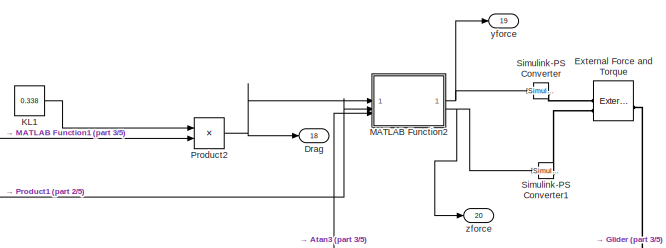
[diagram: root canvas - part 1/5, top right region]
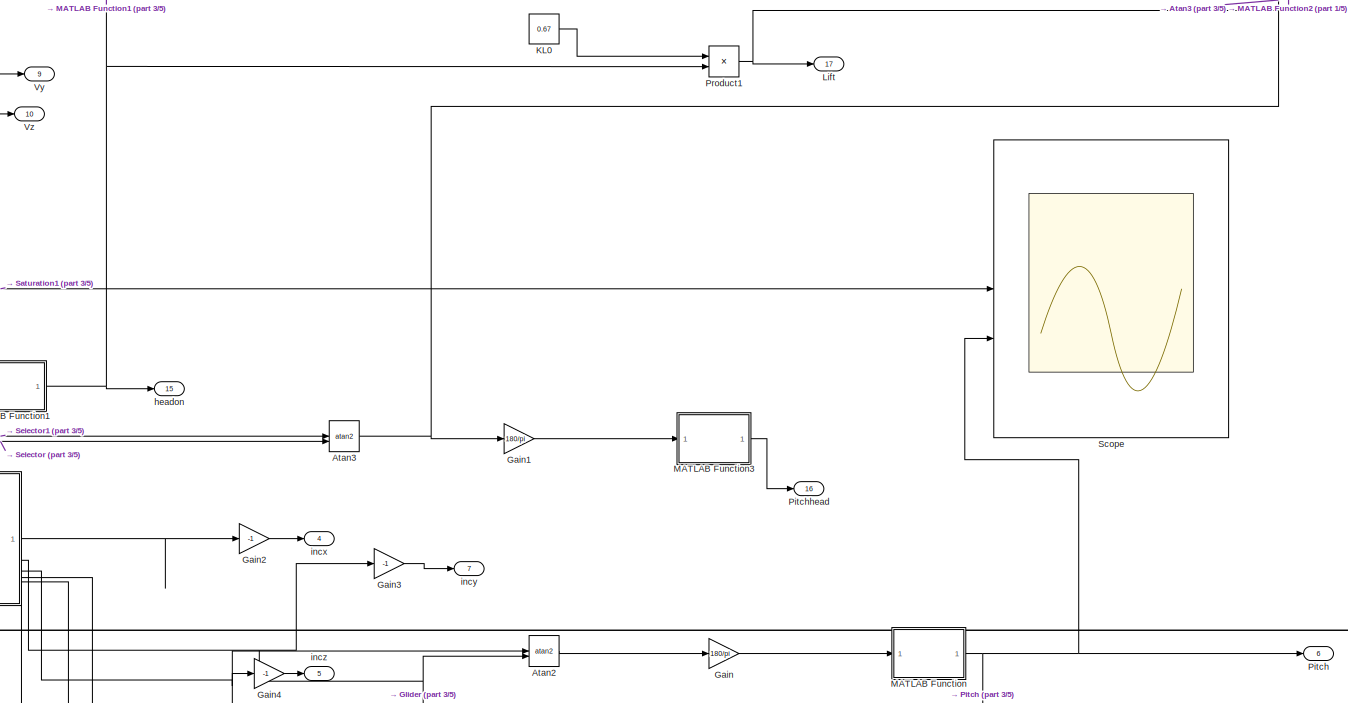
[diagram: root canvas - part 2/5, middle right region]
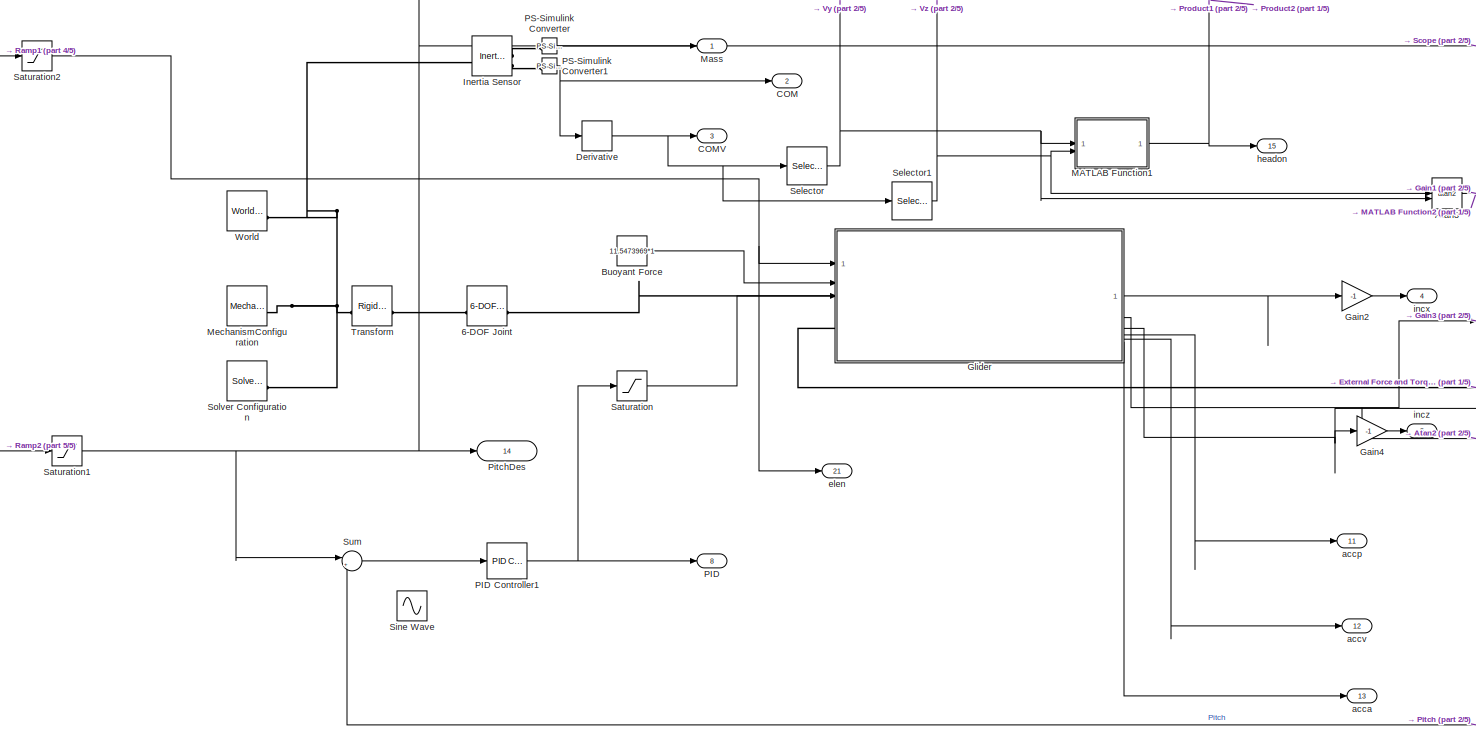
[diagram: root canvas - part 3/5, bottom left region]
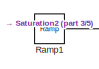
[diagram: root canvas - part 4/5, middle left region]
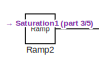
[diagram: root canvas - part 5/5, bottom left region]
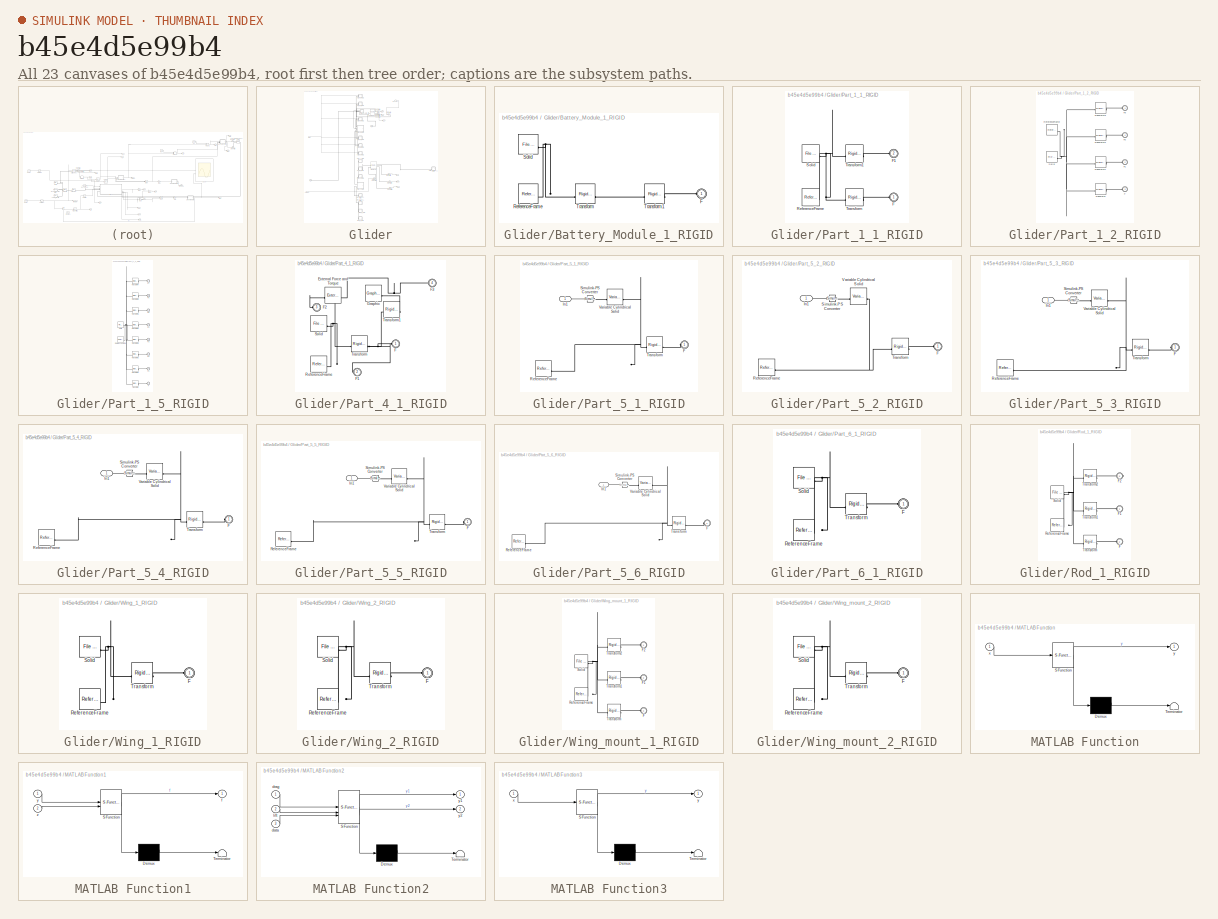
[diagram: thumbnail index - all 23 canvases of the model, root first then tree order]
MODEL slx_b45e4d5e99b4
KIND model
CONFIG AbsTol = auto
CONFIG EnableMultiTasking = off
CONFIG FixedStep = auto
CONFIG MaxStep = auto
CONFIG MinStep = auto
CONFIG RelTol = 1e-3
CONFIG SampleTimeConstraint = Unconstrained
CONFIG SolverName = VariableStepAuto
CONFIG StartTime = 0.0
CONFIG StopTime = 100
WORKSPACE source: external: MATLAB File  (data not in archive)
BLOCK [Reference] 6-DOF Joint  REF=sm_lib/Joints/6-DOF Joint
  SourceBlock = sm_lib/Joints/6-DOF Joint
  SourceType = 6-DOF Joint
BLOCK [Trigonometry] Atan2
  Operator = atan2
BLOCK [Trigonometry] Atan3
  Operator = atan2
BLOCK [Constant] Buoyant Force
  Value = 11.5473969*1
BLOCK [Outport] COM
  Port = 2
BLOCK [Outport] COMV
  Port = 3
BLOCK [Derivative] Derivative
  CoefficientInTFapproximation = 10
BLOCK [Outport] Drag
  Port = 18
BLOCK [Reference] External Force and Torque  REF=sm_lib/Forces and
Torques/External Force
and Torque
  SourceBlock = sm_lib/Forces and\nTorques/External Force\nand Torque
  SourceType = External Force\nand Torque
BLOCK [Gain] Gain
  Gain = 180/pi
BLOCK [Gain] Gain1
  Gain = 180/pi
BLOCK [Gain] Gain2
  Gain = -1
BLOCK [Gain] Gain3
  Gain = -1
BLOCK [Gain] Gain4
  Gain = -1
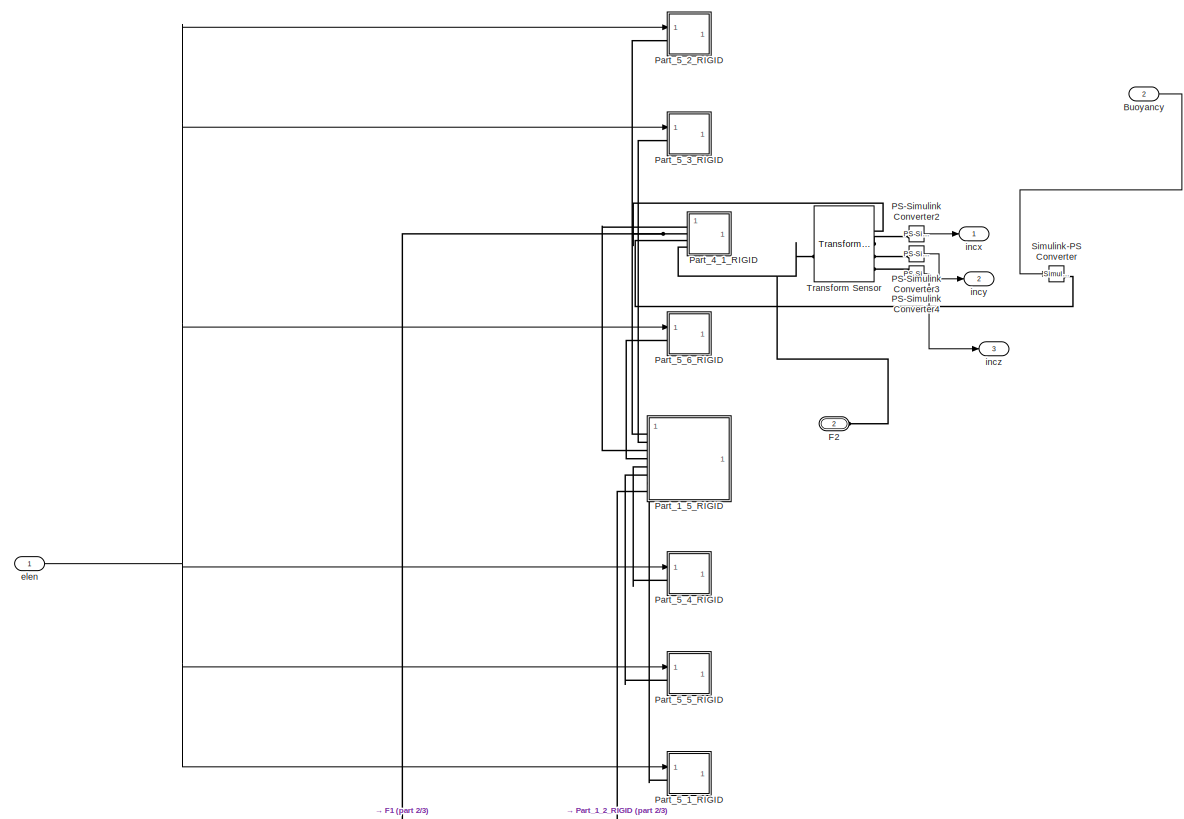
[diagram: Glider - part 1/3, top center region]
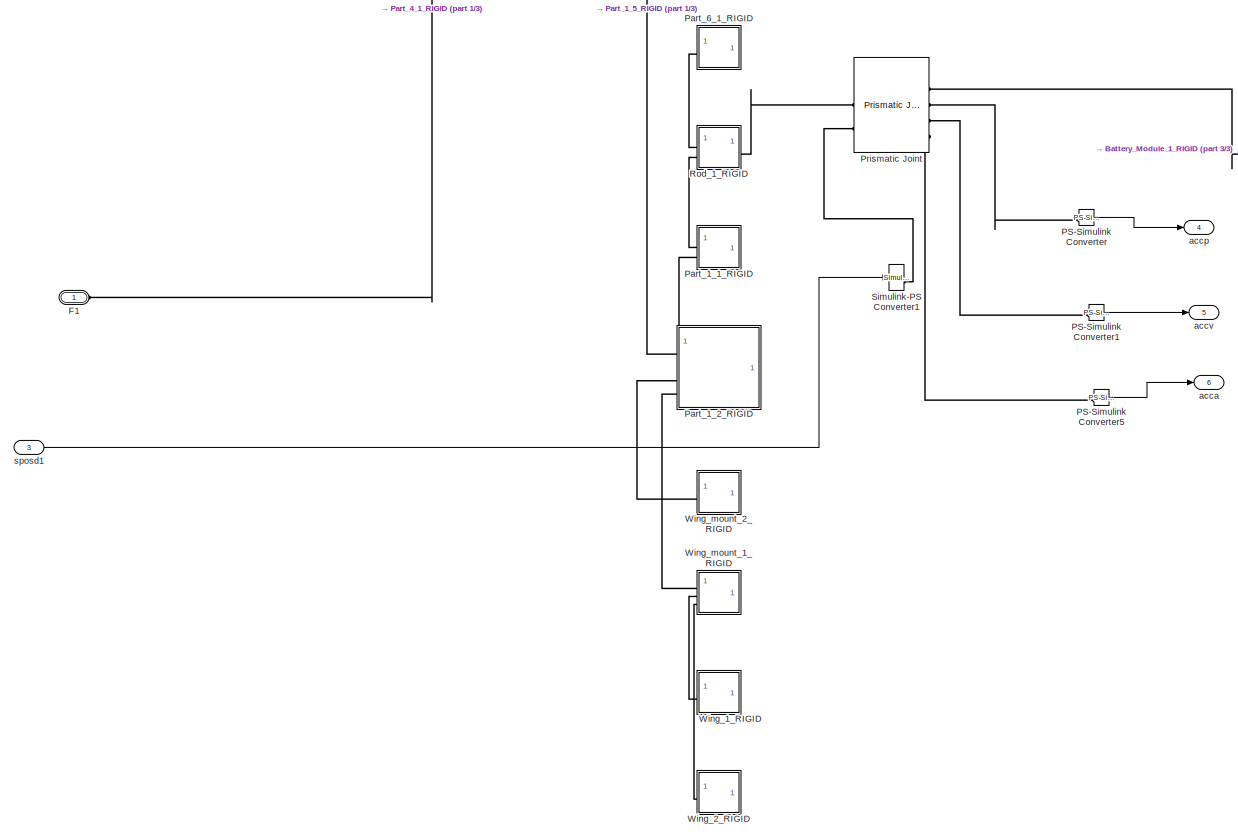
[diagram: Glider - part 2/3, bottom center region]
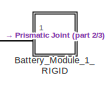
[diagram: Glider - part 3/3, middle right region]
BLOCK [SubSystem] Glider
BLOCK [SubSystem] Glider/Battery_Module_1_RIGID
BLOCK [PMIOPort] Glider/Battery_Module_1_RIGID/F
  Side = Left
BLOCK [Reference] Glider/Battery_Module_1_RIGID/ReferenceFrame  REF=sm_lib/Frames and
Transforms/Reference
Frame
  SourceBlock = sm_lib/Frames and\nTransforms/Reference\nFrame
  SourceType = Reference\nFrame
BLOCK [Reference] Glider/Battery_Module_1_RIGID/Solid  REF=sm_lib/Body Elements/File Solid
  SourceBlock = sm_lib/Body Elements/File Solid
  SourceType = File Solid
BLOCK [Reference] Glider/Battery_Module_1_RIGID/Transform  REF=sm_lib/Frames and
Transforms/Rigid
Transform
  SourceBlock = sm_lib/Frames and\nTransforms/Rigid\nTransform
  SourceType = Rigid\nTransform
BLOCK [Reference] Glider/Battery_Module_1_RIGID/Transform1  REF=sm_lib/Frames and
Transforms/Rigid
Transform
  SourceBlock = sm_lib/Frames and\nTransforms/Rigid\nTransform
  SourceType = Rigid\nTransform
BLOCK [Inport] Glider/Buoyancy
  Port = 2
BLOCK [PMIOPort] Glider/F1
  Side = Left
BLOCK [PMIOPort] Glider/F2
  Port = 2
  Side = Left
BLOCK [Reference] Glider/PS-Simulink Converter  REF=nesl_utility/PS-Simulink
Converter
  SourceBlock = nesl_utility/PS-Simulink\nConverter
  SourceType = PS-Simulink\nConverter
BLOCK [Reference] Glider/PS-Simulink Converter1  REF=nesl_utility/PS-Simulink
Converter
  SourceBlock = nesl_utility/PS-Simulink\nConverter
  SourceType = PS-Simulink\nConverter
BLOCK [Reference] Glider/PS-Simulink Converter2  REF=nesl_utility/PS-Simulink
Converter
  SourceBlock = nesl_utility/PS-Simulink\nConverter
  SourceType = PS-Simulink\nConverter
BLOCK [Reference] Glider/PS-Simulink Converter3  REF=nesl_utility/PS-Simulink
Converter
  SourceBlock = nesl_utility/PS-Simulink\nConverter
  SourceType = PS-Simulink\nConverter
BLOCK [Reference] Glider/PS-Simulink Converter4  REF=nesl_utility/PS-Simulink
Converter
  SourceBlock = nesl_utility/PS-Simulink\nConverter
  SourceType = PS-Simulink\nConverter
BLOCK [Reference] Glider/PS-Simulink Converter5  REF=nesl_utility/PS-Simulink
Converter
  SourceBlock = nesl_utility/PS-Simulink\nConverter
  SourceType = PS-Simulink\nConverter
BLOCK [SubSystem] Glider/Part_1_1_RIGID
BLOCK [PMIOPort] Glider/Part_1_1_RIGID/F
  Side = Left
BLOCK [PMIOPort] Glider/Part_1_1_RIGID/F1
  Port = 2
  Side = Left
BLOCK [Reference] Glider/Part_1_1_RIGID/ReferenceFrame  REF=sm_lib/Frames and
Transforms/Reference
Frame
  SourceBlock = sm_lib/Frames and\nTransforms/Reference\nFrame
  SourceType = Reference\nFrame
BLOCK [Reference] Glider/Part_1_1_RIGID/Solid  REF=sm_lib/Body Elements/File Solid
  SourceBlock = sm_lib/Body Elements/File Solid
  SourceType = File Solid
BLOCK [Reference] Glider/Part_1_1_RIGID/Transform  REF=sm_lib/Frames and
Transforms/Rigid
Transform
  SourceBlock = sm_lib/Frames and\nTransforms/Rigid\nTransform
  SourceType = Rigid\nTransform
BLOCK [Reference] Glider/Part_1_1_RIGID/Transform1  REF=sm_lib/Frames and
Transforms/Rigid
Transform
  SourceBlock = sm_lib/Frames and\nTransforms/Rigid\nTransform
  SourceType = Rigid\nTransform
BLOCK [SubSystem] Glider/Part_1_2_RIGID
BLOCK [PMIOPort] Glider/Part_1_2_RIGID/F
  Port = 3
  Side = Left
BLOCK [PMIOPort] Glider/Part_1_2_RIGID/F1
  Port = 2
  Side = Left
BLOCK [PMIOPort] Glider/Part_1_2_RIGID/F2
  Port = 4
  Side = Left
BLOCK [PMIOPort] Glider/Part_1_2_RIGID/F3
  Side = Left
BLOCK [Reference] Glider/Part_1_2_RIGID/ReferenceFrame  REF=sm_lib/Frames and
Transforms/Reference
Frame
  SourceBlock = sm_lib/Frames and\nTransforms/Reference\nFrame
  SourceType = Reference\nFrame
BLOCK [Reference] Glider/Part_1_2_RIGID/Solid  REF=sm_lib/Body Elements/File Solid
  SourceBlock = sm_lib/Body Elements/File Solid
  SourceType = File Solid
BLOCK [Reference] Glider/Part_1_2_RIGID/Transform  REF=sm_lib/Frames and
Transforms/Rigid
Transform
  SourceBlock = sm_lib/Frames and\nTransforms/Rigid\nTransform
  SourceType = Rigid\nTransform
BLOCK [Reference] Glider/Part_1_2_RIGID/Transform1  REF=sm_lib/Frames and
Transforms/Rigid
Transform
  SourceBlock = sm_lib/Frames and\nTransforms/Rigid\nTransform
  SourceType = Rigid\nTransform
BLOCK [Reference] Glider/Part_1_2_RIGID/Transform2  REF=sm_lib/Frames and
Transforms/Rigid
Transform
  SourceBlock = sm_lib/Frames and\nTransforms/Rigid\nTransform
  SourceType = Rigid\nTransform
BLOCK [Reference] Glider/Part_1_2_RIGID/Transform3  REF=sm_lib/Frames and
Transforms/Rigid
Transform
  SourceBlock = sm_lib/Frames and\nTransforms/Rigid\nTransform
  SourceType = Rigid\nTransform
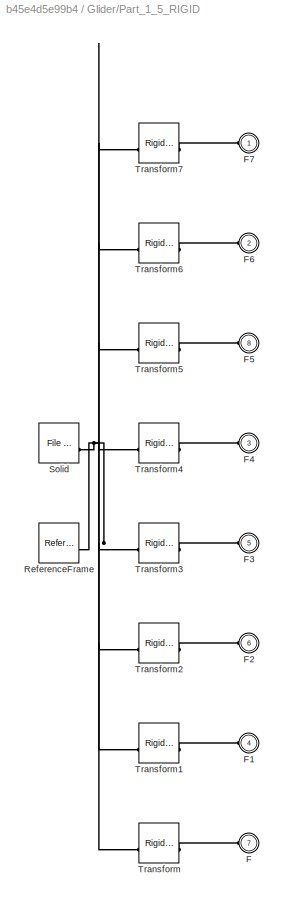
BLOCK [SubSystem] Glider/Part_1_5_RIGID
BLOCK [PMIOPort] Glider/Part_1_5_RIGID/F
  Port = 7
  Side = Left
BLOCK [PMIOPort] Glider/Part_1_5_RIGID/F1
  Port = 4
  Side = Left
BLOCK [PMIOPort] Glider/Part_1_5_RIGID/F2
  Port = 6
  Side = Left
BLOCK [PMIOPort] Glider/Part_1_5_RIGID/F3
  Port = 5
  Side = Left
BLOCK [PMIOPort] Glider/Part_1_5_RIGID/F4
  Port = 3
  Side = Left
BLOCK [PMIOPort] Glider/Part_1_5_RIGID/F5
  Port = 8
  Side = Left
BLOCK [PMIOPort] Glider/Part_1_5_RIGID/F6
  Port = 2
  Side = Left
BLOCK [PMIOPort] Glider/Part_1_5_RIGID/F7
  Side = Left
BLOCK [Reference] Glider/Part_1_5_RIGID/ReferenceFrame  REF=sm_lib/Frames and
Transforms/Reference
Frame
  SourceBlock = sm_lib/Frames and\nTransforms/Reference\nFrame
  SourceType = Reference\nFrame
BLOCK [Reference] Glider/Part_1_5_RIGID/Solid  REF=sm_lib/Body Elements/File Solid
  SourceBlock = sm_lib/Body Elements/File Solid
  SourceType = File Solid
BLOCK [Reference] Glider/Part_1_5_RIGID/Transform  REF=sm_lib/Frames and
Transforms/Rigid
Transform
  SourceBlock = sm_lib/Frames and\nTransforms/Rigid\nTransform
  SourceType = Rigid\nTransform
BLOCK [Reference] Glider/Part_1_5_RIGID/Transform1  REF=sm_lib/Frames and
Transforms/Rigid
Transform
  SourceBlock = sm_lib/Frames and\nTransforms/Rigid\nTransform
  SourceType = Rigid\nTransform
BLOCK [Reference] Glider/Part_1_5_RIGID/Transform2  REF=sm_lib/Frames and
Transforms/Rigid
Transform
  SourceBlock = sm_lib/Frames and\nTransforms/Rigid\nTransform
  SourceType = Rigid\nTransform
BLOCK [Reference] Glider/Part_1_5_RIGID/Transform3  REF=sm_lib/Frames and
Transforms/Rigid
Transform
  SourceBlock = sm_lib/Frames and\nTransforms/Rigid\nTransform
  SourceType = Rigid\nTransform
BLOCK [Reference] Glider/Part_1_5_RIGID/Transform4  REF=sm_lib/Frames and
Transforms/Rigid
Transform
  SourceBlock = sm_lib/Frames and\nTransforms/Rigid\nTransform
  SourceType = Rigid\nTransform
BLOCK [Reference] Glider/Part_1_5_RIGID/Transform5  REF=sm_lib/Frames and
Transforms/Rigid
Transform
  SourceBlock = sm_lib/Frames and\nTransforms/Rigid\nTransform
  SourceType = Rigid\nTransform
BLOCK [Reference] Glider/Part_1_5_RIGID/Transform6  REF=sm_lib/Frames and
Transforms/Rigid
Transform
  SourceBlock = sm_lib/Frames and\nTransforms/Rigid\nTransform
  SourceType = Rigid\nTransform
BLOCK [Reference] Glider/Part_1_5_RIGID/Transform7  REF=sm_lib/Frames and
Transforms/Rigid
Transform
  SourceBlock = sm_lib/Frames and\nTransforms/Rigid\nTransform
  SourceType = Rigid\nTransform
BLOCK [SubSystem] Glider/Part_4_1_RIGID
BLOCK [Reference] Glider/Part_4_1_RIGID/External Force and Torque  REF=sm_lib/Forces and
Torques/External Force
and Torque
  SourceBlock = sm_lib/Forces and\nTorques/External Force\nand Torque
  SourceType = External Force\nand Torque
BLOCK [PMIOPort] Glider/Part_4_1_RIGID/F
  Side = Left
BLOCK [PMIOPort] Glider/Part_4_1_RIGID/F1
  Port = 2
  Side = Left
BLOCK [PMIOPort] Glider/Part_4_1_RIGID/F2
  Port = 3
  Side = Left
BLOCK [PMIOPort] Glider/Part_4_1_RIGID/F3
  Port = 4
  Side = Left
BLOCK [Reference] Glider/Part_4_1_RIGID/Graphic  REF=sm_lib/Body Elements/Graphic
  SourceBlock = sm_lib/Body Elements/Graphic
  SourceType = Graphic
BLOCK [Reference] Glider/Part_4_1_RIGID/ReferenceFrame  REF=sm_lib/Frames and
Transforms/Reference
Frame
  SourceBlock = sm_lib/Frames and\nTransforms/Reference\nFrame
  SourceType = Reference\nFrame
BLOCK [Reference] Glider/Part_4_1_RIGID/Solid  REF=sm_lib/Body Elements/File Solid
  SourceBlock = sm_lib/Body Elements/File Solid
  SourceType = File Solid
BLOCK [Reference] Glider/Part_4_1_RIGID/Transform  REF=sm_lib/Frames and
Transforms/Rigid
Transform
  SourceBlock = sm_lib/Frames and\nTransforms/Rigid\nTransform
  SourceType = Rigid\nTransform
BLOCK [Reference] Glider/Part_4_1_RIGID/Transform1  REF=sm_lib/Frames and
Transforms/Rigid
Transform
  SourceBlock = sm_lib/Frames and\nTransforms/Rigid\nTransform
  SourceType = Rigid\nTransform
BLOCK [SubSystem] Glider/Part_5_1_RIGID
BLOCK [PMIOPort] Glider/Part_5_1_RIGID/F
  Side = Left
BLOCK [Inport] Glider/Part_5_1_RIGID/In1
BLOCK [Reference] Glider/Part_5_1_RIGID/ReferenceFrame  REF=sm_lib/Frames and
Transforms/Reference
Frame
  SourceBlock = sm_lib/Frames and\nTransforms/Reference\nFrame
  SourceType = Reference\nFrame
BLOCK [Reference] Glider/Part_5_1_RIGID/Simulink-PS Converter  REF=nesl_utility/Simulink-PS
Converter
  SourceBlock = nesl_utility/Simulink-PS\nConverter
  SourceType = Simulink-PS\nConverter
BLOCK [Reference] Glider/Part_5_1_RIGID/Transform  REF=sm_lib/Frames and
Transforms/Rigid
Transform
  SourceBlock = sm_lib/Frames and\nTransforms/Rigid\nTransform
  SourceType = Rigid\nTransform
BLOCK [Reference] Glider/Part_5_1_RIGID/Variable Cylindrical Solid  REF=sm_lib/Body Elements/Variable Mass/Variable
Cylindrical Solid
  SourceBlock = sm_lib/Body Elements/Variable Mass/Variable\nCylindrical Solid
  SourceType = Variable\nCylindrical Solid
BLOCK [SubSystem] Glider/Part_5_2_RIGID
BLOCK [PMIOPort] Glider/Part_5_2_RIGID/F
  Side = Left
BLOCK [Inport] Glider/Part_5_2_RIGID/In1
BLOCK [Reference] Glider/Part_5_2_RIGID/ReferenceFrame  REF=sm_lib/Frames and
Transforms/Reference
Frame
  SourceBlock = sm_lib/Frames and\nTransforms/Reference\nFrame
  SourceType = Reference\nFrame
BLOCK [Reference] Glider/Part_5_2_RIGID/Simulink-PS Converter  REF=nesl_utility/Simulink-PS
Converter
  SourceBlock = nesl_utility/Simulink-PS\nConverter
  SourceType = Simulink-PS\nConverter
BLOCK [Reference] Glider/Part_5_2_RIGID/Transform  REF=sm_lib/Frames and
Transforms/Rigid
Transform
  SourceBlock = sm_lib/Frames and\nTransforms/Rigid\nTransform
  SourceType = Rigid\nTransform
BLOCK [Reference] Glider/Part_5_2_RIGID/Variable Cylindrical Solid  REF=sm_lib/Body Elements/Variable Mass/Variable
Cylindrical Solid
  SourceBlock = sm_lib/Body Elements/Variable Mass/Variable\nCylindrical Solid
  SourceType = Variable\nCylindrical Solid
BLOCK [SubSystem] Glider/Part_5_3_RIGID
BLOCK [PMIOPort] Glider/Part_5_3_RIGID/F
  Side = Left
BLOCK [Inport] Glider/Part_5_3_RIGID/In1
BLOCK [Reference] Glider/Part_5_3_RIGID/ReferenceFrame  REF=sm_lib/Frames and
Transforms/Reference
Frame
  SourceBlock = sm_lib/Frames and\nTransforms/Reference\nFrame
  SourceType = Reference\nFrame
BLOCK [Reference] Glider/Part_5_3_RIGID/Simulink-PS Converter  REF=nesl_utility/Simulink-PS
Converter
  SourceBlock = nesl_utility/Simulink-PS\nConverter
  SourceType = Simulink-PS\nConverter
BLOCK [Reference] Glider/Part_5_3_RIGID/Transform  REF=sm_lib/Frames and
Transforms/Rigid
Transform
  SourceBlock = sm_lib/Frames and\nTransforms/Rigid\nTransform
  SourceType = Rigid\nTransform
BLOCK [Reference] Glider/Part_5_3_RIGID/Variable Cylindrical Solid  REF=sm_lib/Body Elements/Variable Mass/Variable
Cylindrical Solid
  SourceBlock = sm_lib/Body Elements/Variable Mass/Variable\nCylindrical Solid
  SourceType = Variable\nCylindrical Solid
BLOCK [SubSystem] Glider/Part_5_4_RIGID
BLOCK [PMIOPort] Glider/Part_5_4_RIGID/F
  Side = Left
BLOCK [Inport] Glider/Part_5_4_RIGID/In1
BLOCK [Reference] Glider/Part_5_4_RIGID/ReferenceFrame  REF=sm_lib/Frames and
Transforms/Reference
Frame
  SourceBlock = sm_lib/Frames and\nTransforms/Reference\nFrame
  SourceType = Reference\nFrame
BLOCK [Reference] Glider/Part_5_4_RIGID/Simulink-PS Converter  REF=nesl_utility/Simulink-PS
Converter
  SourceBlock = nesl_utility/Simulink-PS\nConverter
  SourceType = Simulink-PS\nConverter
BLOCK [Reference] Glider/Part_5_4_RIGID/Transform  REF=sm_lib/Frames and
Transforms/Rigid
Transform
  SourceBlock = sm_lib/Frames and\nTransforms/Rigid\nTransform
  SourceType = Rigid\nTransform
BLOCK [Reference] Glider/Part_5_4_RIGID/Variable Cylindrical Solid  REF=sm_lib/Body Elements/Variable Mass/Variable
Cylindrical Solid
  SourceBlock = sm_lib/Body Elements/Variable Mass/Variable\nCylindrical Solid
  SourceType = Variable\nCylindrical Solid
BLOCK [SubSystem] Glider/Part_5_5_RIGID
BLOCK [PMIOPort] Glider/Part_5_5_RIGID/F
  Side = Left
BLOCK [Inport] Glider/Part_5_5_RIGID/In1
BLOCK [Reference] Glider/Part_5_5_RIGID/ReferenceFrame  REF=sm_lib/Frames and
Transforms/Reference
Frame
  SourceBlock = sm_lib/Frames and\nTransforms/Reference\nFrame
  SourceType = Reference\nFrame
BLOCK [Reference] Glider/Part_5_5_RIGID/Simulink-PS Converter  REF=nesl_utility/Simulink-PS
Converter
  SourceBlock = nesl_utility/Simulink-PS\nConverter
  SourceType = Simulink-PS\nConverter
BLOCK [Reference] Glider/Part_5_5_RIGID/Transform  REF=sm_lib/Frames and
Transforms/Rigid
Transform
  SourceBlock = sm_lib/Frames and\nTransforms/Rigid\nTransform
  SourceType = Rigid\nTransform
BLOCK [Reference] Glider/Part_5_5_RIGID/Variable Cylindrical Solid  REF=sm_lib/Body Elements/Variable Mass/Variable
Cylindrical Solid
  SourceBlock = sm_lib/Body Elements/Variable Mass/Variable\nCylindrical Solid
  SourceType = Variable\nCylindrical Solid
BLOCK [SubSystem] Glider/Part_5_6_RIGID
BLOCK [PMIOPort] Glider/Part_5_6_RIGID/F
  Side = Left
BLOCK [Inport] Glider/Part_5_6_RIGID/In1
BLOCK [Reference] Glider/Part_5_6_RIGID/ReferenceFrame  REF=sm_lib/Frames and
Transforms/Reference
Frame
  SourceBlock = sm_lib/Frames and\nTransforms/Reference\nFrame
  SourceType = Reference\nFrame
BLOCK [Reference] Glider/Part_5_6_RIGID/Simulink-PS Converter  REF=nesl_utility/Simulink-PS
Converter
  SourceBlock = nesl_utility/Simulink-PS\nConverter
  SourceType = Simulink-PS\nConverter
BLOCK [Reference] Glider/Part_5_6_RIGID/Transform  REF=sm_lib/Frames and
Transforms/Rigid
Transform
  SourceBlock = sm_lib/Frames and\nTransforms/Rigid\nTransform
  SourceType = Rigid\nTransform
BLOCK [Reference] Glider/Part_5_6_RIGID/Variable Cylindrical Solid  REF=sm_lib/Body Elements/Variable Mass/Variable
Cylindrical Solid
  SourceBlock = sm_lib/Body Elements/Variable Mass/Variable\nCylindrical Solid
  SourceType = Variable\nCylindrical Solid
BLOCK [SubSystem] Glider/Part_6_1_RIGID
BLOCK [PMIOPort] Glider/Part_6_1_RIGID/F
  Side = Left
BLOCK [Reference] Glider/Part_6_1_RIGID/ReferenceFrame  REF=sm_lib/Frames and
Transforms/Reference
Frame
  SourceBlock = sm_lib/Frames and\nTransforms/Reference\nFrame
  SourceType = Reference\nFrame
BLOCK [Reference] Glider/Part_6_1_RIGID/Solid  REF=sm_lib/Body Elements/File Solid
  SourceBlock = sm_lib/Body Elements/File Solid
  SourceType = File Solid
BLOCK [Reference] Glider/Part_6_1_RIGID/Transform  REF=sm_lib/Frames and
Transforms/Rigid
Transform
  SourceBlock = sm_lib/Frames and\nTransforms/Rigid\nTransform
  SourceType = Rigid\nTransform
BLOCK [Reference] Glider/Prismatic Joint  REF=sm_lib/Joints/Prismatic
Joint
  SourceBlock = sm_lib/Joints/Prismatic\nJoint
  SourceType = Prismatic\nJoint
BLOCK [SubSystem] Glider/Rod_1_RIGID
BLOCK [PMIOPort] Glider/Rod_1_RIGID/F
  Port = 2
  Side = Left
BLOCK [PMIOPort] Glider/Rod_1_RIGID/F1
  Side = Left
BLOCK [PMIOPort] Glider/Rod_1_RIGID/F2
  Port = 3
  Side = Right
BLOCK [Reference] Glider/Rod_1_RIGID/ReferenceFrame  REF=sm_lib/Frames and
Transforms/Reference
Frame
  SourceBlock = sm_lib/Frames and\nTransforms/Reference\nFrame
  SourceType = Reference\nFrame
BLOCK [Reference] Glider/Rod_1_RIGID/Solid  REF=sm_lib/Body Elements/File Solid
  SourceBlock = sm_lib/Body Elements/File Solid
  SourceType = File Solid
BLOCK [Reference] Glider/Rod_1_RIGID/Transform  REF=sm_lib/Frames and
Transforms/Rigid
Transform
  SourceBlock = sm_lib/Frames and\nTransforms/Rigid\nTransform
  SourceType = Rigid\nTransform
BLOCK [Reference] Glider/Rod_1_RIGID/Transform1  REF=sm_lib/Frames and
Transforms/Rigid
Transform
  SourceBlock = sm_lib/Frames and\nTransforms/Rigid\nTransform
  SourceType = Rigid\nTransform
BLOCK [Reference] Glider/Rod_1_RIGID/Transform2  REF=sm_lib/Frames and
Transforms/Rigid
Transform
  SourceBlock = sm_lib/Frames and\nTransforms/Rigid\nTransform
  SourceType = Rigid\nTransform
BLOCK [Reference] Glider/Simulink-PS Converter  REF=nesl_utility/Simulink-PS
Converter
  SourceBlock = nesl_utility/Simulink-PS\nConverter
  SourceType = Simulink-PS\nConverter
BLOCK [Reference] Glider/Simulink-PS Converter1  REF=nesl_utility/Simulink-PS
Converter
  SourceBlock = nesl_utility/Simulink-PS\nConverter
  SourceType = Simulink-PS\nConverter
BLOCK [Reference] Glider/Transform Sensor  REF=sm_lib/Frames and
Transforms/Transform
Sensor
  SourceBlock = sm_lib/Frames and\nTransforms/Transform\nSensor
  SourceType = Transform\nSensor
BLOCK [SubSystem] Glider/Wing_1_RIGID
BLOCK [PMIOPort] Glider/Wing_1_RIGID/F
  Side = Left
BLOCK [Reference] Glider/Wing_1_RIGID/ReferenceFrame  REF=sm_lib/Frames and
Transforms/Reference
Frame
  SourceBlock = sm_lib/Frames and\nTransforms/Reference\nFrame
  SourceType = Reference\nFrame
BLOCK [Reference] Glider/Wing_1_RIGID/Solid  REF=sm_lib/Body Elements/File Solid
  SourceBlock = sm_lib/Body Elements/File Solid
  SourceType = File Solid
BLOCK [Reference] Glider/Wing_1_RIGID/Transform  REF=sm_lib/Frames and
Transforms/Rigid
Transform
  SourceBlock = sm_lib/Frames and\nTransforms/Rigid\nTransform
  SourceType = Rigid\nTransform
BLOCK [SubSystem] Glider/Wing_2_RIGID
BLOCK [PMIOPort] Glider/Wing_2_RIGID/F
  Side = Left
BLOCK [Reference] Glider/Wing_2_RIGID/ReferenceFrame  REF=sm_lib/Frames and
Transforms/Reference
Frame
  SourceBlock = sm_lib/Frames and\nTransforms/Reference\nFrame
  SourceType = Reference\nFrame
BLOCK [Reference] Glider/Wing_2_RIGID/Solid  REF=sm_lib/Body Elements/File Solid
  SourceBlock = sm_lib/Body Elements/File Solid
  SourceType = File Solid
BLOCK [Reference] Glider/Wing_2_RIGID/Transform  REF=sm_lib/Frames and
Transforms/Rigid
Transform
  SourceBlock = sm_lib/Frames and\nTransforms/Rigid\nTransform
  SourceType = Rigid\nTransform
BLOCK [SubSystem] Glider/Wing_mount_1_RIGID
BLOCK [PMIOPort] Glider/Wing_mount_1_RIGID/F
  Port = 3
  Side = Left
BLOCK [PMIOPort] Glider/Wing_mount_1_RIGID/F1
  Port = 2
  Side = Left
BLOCK [PMIOPort] Glider/Wing_mount_1_RIGID/F2
  Side = Left
BLOCK [Reference] Glider/Wing_mount_1_RIGID/ReferenceFrame  REF=sm_lib/Frames and
Transforms/Reference
Frame
  SourceBlock = sm_lib/Frames and\nTransforms/Reference\nFrame
  SourceType = Reference\nFrame
BLOCK [Reference] Glider/Wing_mount_1_RIGID/Solid  REF=sm_lib/Body Elements/File Solid
  SourceBlock = sm_lib/Body Elements/File Solid
  SourceType = File Solid
BLOCK [Reference] Glider/Wing_mount_1_RIGID/Transform  REF=sm_lib/Frames and
Transforms/Rigid
Transform
  SourceBlock = sm_lib/Frames and\nTransforms/Rigid\nTransform
  SourceType = Rigid\nTransform
BLOCK [Reference] Glider/Wing_mount_1_RIGID/Transform1  REF=sm_lib/Frames and
Transforms/Rigid
Transform
  SourceBlock = sm_lib/Frames and\nTransforms/Rigid\nTransform
  SourceType = Rigid\nTransform
BLOCK [Reference] Glider/Wing_mount_1_RIGID/Transform2  REF=sm_lib/Frames and
Transforms/Rigid
Transform
  SourceBlock = sm_lib/Frames and\nTransforms/Rigid\nTransform
  SourceType = Rigid\nTransform
BLOCK [SubSystem] Glider/Wing_mount_2_RIGID
BLOCK [PMIOPort] Glider/Wing_mount_2_RIGID/F
  Side = Left
BLOCK [Reference] Glider/Wing_mount_2_RIGID/ReferenceFrame  REF=sm_lib/Frames and
Transforms/Reference
Frame
  SourceBlock = sm_lib/Frames and\nTransforms/Reference\nFrame
  SourceType = Reference\nFrame
BLOCK [Reference] Glider/Wing_mount_2_RIGID/Solid  REF=sm_lib/Body Elements/File Solid
  SourceBlock = sm_lib/Body Elements/File Solid
  SourceType = File Solid
BLOCK [Reference] Glider/Wing_mount_2_RIGID/Transform  REF=sm_lib/Frames and
Transforms/Rigid
Transform
  SourceBlock = sm_lib/Frames and\nTransforms/Rigid\nTransform
  SourceType = Rigid\nTransform
BLOCK [Outport] Glider/acca
  Port = 6
BLOCK [Outport] Glider/accp
  Port = 4
BLOCK [Outport] Glider/accv
  Port = 5
BLOCK [Inport] Glider/elen
BLOCK [Outport] Glider/incx
BLOCK [Outport] Glider/incy
  Port = 2
BLOCK [Outport] Glider/incz
  Port = 3
BLOCK [Inport] Glider/sposd1
  Port = 3
BLOCK [Reference] Inertia Sensor  REF=sm_lib/Body Elements/Inertia Sensor
  SourceBlock = sm_lib/Body Elements/Inertia Sensor
  SourceType = Inertia Sensor
BLOCK [Constant] KL0
  Value = 0.67
BLOCK [Constant] KL1
  Value = 0.338
BLOCK [Outport] Lift
  Port = 17
BLOCK [SubSystem] MATLAB Function
  ErrorFcn = Stateflow.Translate.translate
  LibrarySourceBlock = simulink/User-Defined\nFunctions/MATLAB Function
  PermitHierarchicalResolution = ExplicitOnly
  SFBlockType = MATLAB Function
  TreatAsAtomicUnit = on
BLOCK [Demux] MATLAB Function/ Demux 
  Outputs = 1
BLOCK [S-Function] MATLAB Function/ SFunction 
  EnableBusSupport = on
  FunctionName = sf_sfun
  PortCounts = [1 2]
  SFcnIsStateOwnerBlock = off
  SFunctionDeploymentMode = off
  Tag = Stateflow S-Function 1
BLOCK [Terminator] MATLAB Function/ Terminator 
BLOCK [Inport] MATLAB Function/x
BLOCK [Outport] MATLAB Function/y
BLOCK [SubSystem] MATLAB Function1
  ErrorFcn = Stateflow.Translate.translate
  LibrarySourceBlock = simulink/User-Defined\nFunctions/MATLAB Function
  PermitHierarchicalResolution = ExplicitOnly
  SFBlockType = MATLAB Function
  TreatAsAtomicUnit = on
BLOCK [Demux] MATLAB Function1/ Demux 
  Outputs = 1
BLOCK [S-Function] MATLAB Function1/ SFunction 
  EnableBusSupport = on
  FunctionName = sf_sfun
  PortCounts = [2 2]
  SFcnIsStateOwnerBlock = off
  SFunctionDeploymentMode = off
  Tag = Stateflow S-Function 4
BLOCK [Terminator] MATLAB Function1/ Terminator 
BLOCK [Outport] MATLAB Function1/f
BLOCK [Inport] MATLAB Function1/y
BLOCK [Inport] MATLAB Function1/z
  Port = 2
BLOCK [SubSystem] MATLAB Function2
  ErrorFcn = Stateflow.Translate.translate
  LibrarySourceBlock = simulink/User-Defined\nFunctions/MATLAB Function
  PermitHierarchicalResolution = ExplicitOnly
  SFBlockType = MATLAB Function
  TreatAsAtomicUnit = on
BLOCK [Demux] MATLAB Function2/ Demux 
  Outputs = 1
BLOCK [S-Function] MATLAB Function2/ SFunction 
  EnableBusSupport = on
  FunctionName = sf_sfun
  PortCounts = [3 3]
  SFcnIsStateOwnerBlock = off
  SFunctionDeploymentMode = off
  Tag = Stateflow S-Function 2
BLOCK [Terminator] MATLAB Function2/ Terminator 
BLOCK [Inport] MATLAB Function2/data
  Port = 3
BLOCK [Inport] MATLAB Function2/drag
BLOCK [Inport] MATLAB Function2/lift
  Port = 2
BLOCK [Outport] MATLAB Function2/y1
BLOCK [Outport] MATLAB Function2/y2
  Port = 2
BLOCK [SubSystem] MATLAB Function3
  ErrorFcn = Stateflow.Translate.translate
  LibrarySourceBlock = simulink/User-Defined\nFunctions/MATLAB Function
  PermitHierarchicalResolution = ExplicitOnly
  SFBlockType = MATLAB Function
  TreatAsAtomicUnit = on
BLOCK [Demux] MATLAB Function3/ Demux 
  Outputs = 1
BLOCK [S-Function] MATLAB Function3/ SFunction 
  EnableBusSupport = on
  FunctionName = sf_sfun
  PortCounts = [1 2]
  SFcnIsStateOwnerBlock = off
  SFunctionDeploymentMode = off
  Tag = Stateflow S-Function 3
BLOCK [Terminator] MATLAB Function3/ Terminator 
BLOCK [Inport] MATLAB Function3/x
BLOCK [Outport] MATLAB Function3/y
BLOCK [Outport] Mass
BLOCK [Reference] MechanismConfiguration  REF=sm_lib/Utilities/Mechanism
Configuration
  SourceBlock = sm_lib/Utilities/Mechanism\nConfiguration
  SourceType = Mechanism\nConfiguration
BLOCK [Outport] PID
  Port = 8
BLOCK [Reference] PID Controller1  REF=slpidlib/PID Controller
  LibrarySourceBlock = simulink/Continuous/PID Controller
  SourceBlock = slpidlib/PID Controller
  SourceType = PID 1dof
BLOCK [Reference] PS-Simulink Converter  REF=nesl_utility/PS-Simulink
Converter
  SourceBlock = nesl_utility/PS-Simulink\nConverter
  SourceType = PS-Simulink\nConverter
BLOCK [Reference] PS-Simulink Converter1  REF=nesl_utility/PS-Simulink
Converter
  SourceBlock = nesl_utility/PS-Simulink\nConverter
  SourceType = PS-Simulink\nConverter
BLOCK [Outport] Pitch
  Port = 6
BLOCK [Outport] PitchDes
  Port = 14
BLOCK [Outport] Pitchhead
  Port = 16
BLOCK [Product] Product1
BLOCK [Product] Product2
BLOCK [Reference] Ramp1  REF=simulink/Sources/Ramp
  SourceBlock = simulink/Sources/Ramp
  SourceType = Ramp
BLOCK [Reference] Ramp2  REF=simulink/Sources/Ramp
  SourceBlock = simulink/Sources/Ramp
  SourceType = Ramp
BLOCK [Saturate] Saturation
BLOCK [Saturate] Saturation1
  LowerLimit = 0
  UpperLimit = 15
BLOCK [Saturate] Saturation2
  LowerLimit = 0
  UpperLimit = 0.44
BLOCK [Scope] Scope
  Floating = off
  NumInputPorts = 2
  ScopeSpecificationString = Simulink.scopes.TimeScopeBlockCfg('CurrentConfiguration', extmgr.ConfigurationSet(extmgr.Configuration('Core','General UI',true),extmgr.Configuration('Core','Source UI',true),extmgr.Configuration('Sources','WiredSimulink',true),extmgr.Configuration('Visuals','Time Domain',true,'SerializedDisplays',{struct('MinYLimReal','18.42711','MaxYLimReal','19.25649','YLabelReal','','MinYLimMag','18.42711','Ma...<+1755ch>
BLOCK [Selector] Selector
  IndexOptions = Index vector (dialog)
  Indices = 2
  InputPortWidth = 3
  OutputSizes = 1
BLOCK [Selector] Selector1
  IndexOptions = Index vector (dialog)
  Indices = 3
  InputPortWidth = 3
  OutputSizes = 1
BLOCK [Reference] Simulink-PS Converter  REF=nesl_utility/Simulink-PS
Converter
  SourceBlock = nesl_utility/Simulink-PS\nConverter
  SourceType = Simulink-PS\nConverter
BLOCK [Reference] Simulink-PS Converter1  REF=nesl_utility/Simulink-PS
Converter
  SourceBlock = nesl_utility/Simulink-PS\nConverter
  SourceType = Simulink-PS\nConverter
BLOCK [Sin] Sine Wave
  Amplitude = 0.05
  Frequency = 1000
  SampleTime = 0
BLOCK [Reference] Solver Configuration  REF=nesl_utility/Solver
Configuration
  SourceBlock = nesl_utility/Solver\nConfiguration
  SourceType = Solver\nConfiguration
BLOCK [Sum] Sum
  Inputs = |+-
BLOCK [Reference] Transform  REF=sm_lib/Frames and
Transforms/Rigid
Transform
  SourceBlock = sm_lib/Frames and\nTransforms/Rigid\nTransform
  SourceType = Rigid\nTransform
BLOCK [Outport] Vy
  Port = 9
BLOCK [Outport] Vz
  Port = 10
BLOCK [Reference] World  REF=sm_lib/Frames and
Transforms/World Frame
  SourceBlock = sm_lib/Frames and\nTransforms/World Frame
  SourceType = World Frame
BLOCK [Outport] acca
  Port = 13
BLOCK [Outport] accp
  Port = 11
BLOCK [Outport] accv
  Port = 12
BLOCK [Outport] elen
  Port = 21
BLOCK [Outport] headon
  Port = 15
BLOCK [Outport] incx
  Port = 4
BLOCK [Outport] incy
  Port = 7
BLOCK [Outport] incz
  Port = 5
BLOCK [Outport] yforce
  Port = 19
BLOCK [Outport] zforce
  Port = 20
LINE Atan2:1 -> Gain:1
NET Atan3:1 -> Gain1:1, MATLAB Function2:3
LINE Buoyant Force:1 -> Glider:2
NET Derivative:1 -> COMV:1, Selector1:1, Selector:1
LINE Gain1:1 -> MATLAB Function3:1
LINE Gain2:1 -> incx:1
LINE Gain3:1 -> incy:1
LINE Gain4:1 -> incz:1
LINE Gain:1 -> MATLAB Function:1
LINE Glider/Buoyancy:1 -> Glider/Simulink-PS Converter:1
LINE Glider/PS-Simulink Converter1:1 -> Glider/accv:1
LINE Glider/PS-Simulink Converter2:1 -> Glider/incx:1
LINE Glider/PS-Simulink Converter3:1 -> Glider/incy:1
LINE Glider/PS-Simulink Converter4:1 -> Glider/incz:1
LINE Glider/PS-Simulink Converter5:1 -> Glider/acca:1
LINE Glider/PS-Simulink Converter:1 -> Glider/accp:1
LINE Glider/Part_5_1_RIGID/In1:1 -> Glider/Part_5_1_RIGID/Simulink-PS Converter:1
LINE Glider/Part_5_2_RIGID/In1:1 -> Glider/Part_5_2_RIGID/Simulink-PS Converter:1
LINE Glider/Part_5_3_RIGID/In1:1 -> Glider/Part_5_3_RIGID/Simulink-PS Converter:1
LINE Glider/Part_5_4_RIGID/In1:1 -> Glider/Part_5_4_RIGID/Simulink-PS Converter:1
LINE Glider/Part_5_5_RIGID/In1:1 -> Glider/Part_5_5_RIGID/Simulink-PS Converter:1
LINE Glider/Part_5_6_RIGID/In1:1 -> Glider/Part_5_6_RIGID/Simulink-PS Converter:1
NET Glider/elen:1 -> Glider/Part_5_1_RIGID:1, Glider/Part_5_2_RIGID:1, Glider/Part_5_3_RIGID:1, Glider/Part_5_4_RIGID:1, Glider/Part_5_5_RIGID:1, Glider/Part_5_6_RIGID:1
LINE Glider/sposd1:1 -> Glider/Simulink-PS Converter1:1
LINE Glider:1 -> Gain2:1
NET Glider:2 -> Atan2:2, Gain3:1
NET Glider:3 -> Atan2:1, Gain4:1
LINE Glider:4 -> accp:1
LINE Glider:5 -> accv:1
LINE Glider:6 -> acca:1
LINE KL0:1 -> Product1:1
LINE KL1:1 -> Product2:1
NET MATLAB Function1:1 -> Product1:2, Product2:2, headon:1
NET MATLAB Function2:1 -> Simulink-PS Converter:1, yforce:1
NET MATLAB Function2:2 -> Simulink-PS Converter1:1, zforce:1
LINE MATLAB Function3:1 -> Pitchhead:1
NET MATLAB Function:1 -> Pitch:1, Scope:2, Sum:2
NET PID Controller1:1 -> PID:1, Saturation:1
NET PS-Simulink Converter1:1 -> COM:1, Derivative:1
LINE PS-Simulink Converter:1 -> Mass:1
NET Product1:1 -> Lift:1, MATLAB Function2:2
NET Product2:1 -> Drag:1, MATLAB Function2:1
LINE Ramp1:1 -> Saturation2:1
LINE Ramp2:1 -> Saturation1:1
NET Saturation1:1 -> PitchDes:1, Scope:1, Sum:1
NET Saturation2:1 -> Glider:1, elen:1
LINE Saturation:1 -> Glider:3
NET Selector1:1 -> Atan3:1, MATLAB Function1:2, Vz:1
NET Selector:1 -> Atan3:2, MATLAB Function1:1, Vy:1
LINE Sum:1 -> PID Controller1:1
PLINE 6-DOF Joint:LConn1 -- Transform:RConn1
PLINE 6-DOF Joint:RConn1 -- Glider:LConn1
PLINE External Force and Torque:LConn1 -- Simulink-PS Converter:RConn1
PLINE External Force and Torque:LConn2 -- Simulink-PS Converter1:RConn1
PLINE External Force and Torque:RConn1 -- Glider:LConn2
PLINE Glider/Battery_Module_1_RIGID/F:RConn1 -- Glider/Battery_Module_1_RIGID/Transform1:RConn1
PNET net1: Glider/Battery_Module_1_RIGID/ReferenceFrame:RConn1 -- Glider/Battery_Module_1_RIGID/Solid:RConn1 -- Glider/Battery_Module_1_RIGID/Transform:LConn1
PLINE Glider/Battery_Module_1_RIGID/Transform1:LConn1 -- Glider/Battery_Module_1_RIGID/Transform:RConn1
PLINE Glider/Battery_Module_1_RIGID:LConn1 -- Glider/Prismatic Joint:RConn1
PNET net2: Glider/F1:RConn1 -- Glider/Part_4_1_RIGID:LConn2 -- Glider/Transform Sensor:RConn1
PNET net3: Glider/F2:RConn1 -- Glider/Part_4_1_RIGID:LConn4 -- Glider/Transform Sensor:LConn1
PLINE Glider/PS-Simulink Converter1:LConn1 -- Glider/Prismatic Joint:RConn3
PLINE Glider/PS-Simulink Converter2:LConn1 -- Glider/Transform Sensor:RConn2
PLINE Glider/PS-Simulink Converter3:LConn1 -- Glider/Transform Sensor:RConn3
PLINE Glider/PS-Simulink Converter4:LConn1 -- Glider/Transform Sensor:RConn4
PLINE Glider/PS-Simulink Converter5:LConn1 -- Glider/Prismatic Joint:RConn4
PLINE Glider/PS-Simulink Converter:LConn1 -- Glider/Prismatic Joint:RConn2
PLINE Glider/Part_1_1_RIGID/F1:RConn1 -- Glider/Part_1_1_RIGID/Transform1:RConn1
PLINE Glider/Part_1_1_RIGID/F:RConn1 -- Glider/Part_1_1_RIGID/Transform:RConn1
PNET net4: Glider/Part_1_1_RIGID/ReferenceFrame:RConn1 -- Glider/Part_1_1_RIGID/Solid:RConn1 -- Glider/Part_1_1_RIGID/Transform1:LConn1 -- Glider/Part_1_1_RIGID/Transform:LConn1
PLINE Glider/Part_1_1_RIGID:LConn1 -- Glider/Rod_1_RIGID:LConn2
PLINE Glider/Part_1_1_RIGID:LConn2 -- Glider/Part_1_2_RIGID:LConn2
PLINE Glider/Part_1_2_RIGID/F1:RConn1 -- Glider/Part_1_2_RIGID/Transform1:RConn1
PLINE Glider/Part_1_2_RIGID/F2:RConn1 -- Glider/Part_1_2_RIGID/Transform2:RConn1
PLINE Glider/Part_1_2_RIGID/F3:RConn1 -- Glider/Part_1_2_RIGID/Transform3:RConn1
PLINE Glider/Part_1_2_RIGID/F:RConn1 -- Glider/Part_1_2_RIGID/Transform:RConn1
PNET net5: Glider/Part_1_2_RIGID/ReferenceFrame:RConn1 -- Glider/Part_1_2_RIGID/Solid:RConn1 -- Glider/Part_1_2_RIGID/Transform1:LConn1 -- Glider/Part_1_2_RIGID/Transform2:LConn1 -- Glider/Part_1_2_RIGID/Transform3:LConn1 -- Glider/Part_1_2_RIGID/Transform:LConn1
PLINE Glider/Part_1_2_RIGID:LConn1 -- Glider/Part_1_5_RIGID:LConn8
PLINE Glider/Part_1_2_RIGID:LConn3 -- Glider/Wing_mount_2_RIGID:LConn1
PLINE Glider/Part_1_2_RIGID:LConn4 -- Glider/Wing_mount_1_RIGID:LConn1
PLINE Glider/Part_1_5_RIGID/F1:RConn1 -- Glider/Part_1_5_RIGID/Transform1:RConn1
PLINE Glider/Part_1_5_RIGID/F2:RConn1 -- Glider/Part_1_5_RIGID/Transform2:RConn1
PLINE Glider/Part_1_5_RIGID/F3:RConn1 -- Glider/Part_1_5_RIGID/Transform3:RConn1
PLINE Glider/Part_1_5_RIGID/F4:RConn1 -- Glider/Part_1_5_RIGID/Transform4:RConn1
PLINE Glider/Part_1_5_RIGID/F5:RConn1 -- Glider/Part_1_5_RIGID/Transform5:RConn1
PLINE Glider/Part_1_5_RIGID/F6:RConn1 -- Glider/Part_1_5_RIGID/Transform6:RConn1
PLINE Glider/Part_1_5_RIGID/F7:RConn1 -- Glider/Part_1_5_RIGID/Transform7:RConn1
PLINE Glider/Part_1_5_RIGID/F:RConn1 -- Glider/Part_1_5_RIGID/Transform:RConn1
PNET net6: Glider/Part_1_5_RIGID/ReferenceFrame:RConn1 -- Glider/Part_1_5_RIGID/Solid:RConn1 -- Glider/Part_1_5_RIGID/Transform1:LConn1 -- Glider/Part_1_5_RIGID/Transform2:LConn1 -- Glider/Part_1_5_RIGID/Transform3:LConn1 -- Glider/Part_1_5_RIGID/Transform4:LConn1 -- Glider/Part_1_5_RIGID/Transform5:LConn1 -- Glider/Part_1_5_RIGID/Transform6:LConn1 -- Glider/Part_1_5_RIGID/Transform7:LConn1 -- Glider/Part_1_5_RIGID/Transform:LConn1
PLINE Glider/Part_1_5_RIGID:LConn1 -- Glider/Part_5_2_RIGID:LConn1
PLINE Glider/Part_1_5_RIGID:LConn2 -- Glider/Part_5_3_RIGID:LConn1
PLINE Glider/Part_1_5_RIGID:LConn3 -- Glider/Part_4_1_RIGID:LConn1
PLINE Glider/Part_1_5_RIGID:LConn4 -- Glider/Part_5_6_RIGID:LConn1
PLINE Glider/Part_1_5_RIGID:LConn5 -- Glider/Part_5_4_RIGID:LConn1
PLINE Glider/Part_1_5_RIGID:LConn6 -- Glider/Part_5_5_RIGID:LConn1
PLINE Glider/Part_1_5_RIGID:LConn7 -- Glider/Part_5_1_RIGID:LConn1
PLINE Glider/Part_4_1_RIGID/External Force and Torque:LConn1 -- Glider/Part_4_1_RIGID/F2:RConn1
PNET net7: Glider/Part_4_1_RIGID/External Force and Torque:RConn1 -- Glider/Part_4_1_RIGID/F3:RConn1 -- Glider/Part_4_1_RIGID/Graphic:RConn1 -- Glider/Part_4_1_RIGID/Transform1:RConn1
PNET net8: Glider/Part_4_1_RIGID/F1:RConn1 -- Glider/Part_4_1_RIGID/F:RConn1 -- Glider/Part_4_1_RIGID/Transform1:LConn1 -- Glider/Part_4_1_RIGID/Transform:RConn1
PNET net9: Glider/Part_4_1_RIGID/ReferenceFrame:RConn1 -- Glider/Part_4_1_RIGID/Solid:RConn1 -- Glider/Part_4_1_RIGID/Transform:LConn1
PLINE Glider/Part_4_1_RIGID:LConn3 -- Glider/Simulink-PS Converter:RConn1
PLINE Glider/Part_5_1_RIGID/F:RConn1 -- Glider/Part_5_1_RIGID/Transform:RConn1
PNET net10: Glider/Part_5_1_RIGID/ReferenceFrame:RConn1 -- Glider/Part_5_1_RIGID/Transform:LConn1 -- Glider/Part_5_1_RIGID/Variable Cylindrical Solid:RConn1
PLINE Glider/Part_5_1_RIGID/Simulink-PS Converter:RConn1 -- Glider/Part_5_1_RIGID/Variable Cylindrical Solid:LConn1
PLINE Glider/Part_5_2_RIGID/F:RConn1 -- Glider/Part_5_2_RIGID/Transform:RConn1
PNET net11: Glider/Part_5_2_RIGID/ReferenceFrame:RConn1 -- Glider/Part_5_2_RIGID/Transform:LConn1 -- Glider/Part_5_2_RIGID/Variable Cylindrical Solid:RConn1
PLINE Glider/Part_5_2_RIGID/Simulink-PS Converter:RConn1 -- Glider/Part_5_2_RIGID/Variable Cylindrical Solid:LConn1
PLINE Glider/Part_5_3_RIGID/F:RConn1 -- Glider/Part_5_3_RIGID/Transform:RConn1
PNET net12: Glider/Part_5_3_RIGID/ReferenceFrame:RConn1 -- Glider/Part_5_3_RIGID/Transform:LConn1 -- Glider/Part_5_3_RIGID/Variable Cylindrical Solid:RConn1
PLINE Glider/Part_5_3_RIGID/Simulink-PS Converter:RConn1 -- Glider/Part_5_3_RIGID/Variable Cylindrical Solid:LConn1
PLINE Glider/Part_5_4_RIGID/F:RConn1 -- Glider/Part_5_4_RIGID/Transform:RConn1
PNET net13: Glider/Part_5_4_RIGID/ReferenceFrame:RConn1 -- Glider/Part_5_4_RIGID/Transform:LConn1 -- Glider/Part_5_4_RIGID/Variable Cylindrical Solid:RConn1
PLINE Glider/Part_5_4_RIGID/Simulink-PS Converter:RConn1 -- Glider/Part_5_4_RIGID/Variable Cylindrical Solid:LConn1
PLINE Glider/Part_5_5_RIGID/F:RConn1 -- Glider/Part_5_5_RIGID/Transform:RConn1
PNET net14: Glider/Part_5_5_RIGID/ReferenceFrame:RConn1 -- Glider/Part_5_5_RIGID/Transform:LConn1 -- Glider/Part_5_5_RIGID/Variable Cylindrical Solid:RConn1
PLINE Glider/Part_5_5_RIGID/Simulink-PS Converter:RConn1 -- Glider/Part_5_5_RIGID/Variable Cylindrical Solid:LConn1
PLINE Glider/Part_5_6_RIGID/F:RConn1 -- Glider/Part_5_6_RIGID/Transform:RConn1
PNET net15: Glider/Part_5_6_RIGID/ReferenceFrame:RConn1 -- Glider/Part_5_6_RIGID/Transform:LConn1 -- Glider/Part_5_6_RIGID/Variable Cylindrical Solid:RConn1
PLINE Glider/Part_5_6_RIGID/Simulink-PS Converter:RConn1 -- Glider/Part_5_6_RIGID/Variable Cylindrical Solid:LConn1
PLINE Glider/Part_6_1_RIGID/F:RConn1 -- Glider/Part_6_1_RIGID/Transform:RConn1
PNET net16: Glider/Part_6_1_RIGID/ReferenceFrame:RConn1 -- Glider/Part_6_1_RIGID/Solid:RConn1 -- Glider/Part_6_1_RIGID/Transform:LConn1
PLINE Glider/Part_6_1_RIGID:LConn1 -- Glider/Rod_1_RIGID:LConn1
PLINE Glider/Prismatic Joint:LConn1 -- Glider/Rod_1_RIGID:RConn1
PLINE Glider/Prismatic Joint:LConn2 -- Glider/Simulink-PS Converter1:RConn1
PLINE Glider/Rod_1_RIGID/F1:RConn1 -- Glider/Rod_1_RIGID/Transform1:RConn1
PLINE Glider/Rod_1_RIGID/F2:RConn1 -- Glider/Rod_1_RIGID/Transform2:RConn1
PLINE Glider/Rod_1_RIGID/F:RConn1 -- Glider/Rod_1_RIGID/Transform:RConn1
PNET net17: Glider/Rod_1_RIGID/ReferenceFrame:RConn1 -- Glider/Rod_1_RIGID/Solid:RConn1 -- Glider/Rod_1_RIGID/Transform1:LConn1 -- Glider/Rod_1_RIGID/Transform2:LConn1 -- Glider/Rod_1_RIGID/Transform:LConn1
PLINE Glider/Wing_1_RIGID/F:RConn1 -- Glider/Wing_1_RIGID/Transform:RConn1
PNET net18: Glider/Wing_1_RIGID/ReferenceFrame:RConn1 -- Glider/Wing_1_RIGID/Solid:RConn1 -- Glider/Wing_1_RIGID/Transform:LConn1
PLINE Glider/Wing_1_RIGID:LConn1 -- Glider/Wing_mount_1_RIGID:LConn2
PLINE Glider/Wing_2_RIGID/F:RConn1 -- Glider/Wing_2_RIGID/Transform:RConn1
PNET net19: Glider/Wing_2_RIGID/ReferenceFrame:RConn1 -- Glider/Wing_2_RIGID/Solid:RConn1 -- Glider/Wing_2_RIGID/Transform:LConn1
PLINE Glider/Wing_2_RIGID:LConn1 -- Glider/Wing_mount_1_RIGID:LConn3
PLINE Glider/Wing_mount_1_RIGID/F1:RConn1 -- Glider/Wing_mount_1_RIGID/Transform1:RConn1
PLINE Glider/Wing_mount_1_RIGID/F2:RConn1 -- Glider/Wing_mount_1_RIGID/Transform2:RConn1
PLINE Glider/Wing_mount_1_RIGID/F:RConn1 -- Glider/Wing_mount_1_RIGID/Transform:RConn1
PNET net20: Glider/Wing_mount_1_RIGID/ReferenceFrame:RConn1 -- Glider/Wing_mount_1_RIGID/Solid:RConn1 -- Glider/Wing_mount_1_RIGID/Transform1:LConn1 -- Glider/Wing_mount_1_RIGID/Transform2:LConn1 -- Glider/Wing_mount_1_RIGID/Transform:LConn1
PLINE Glider/Wing_mount_2_RIGID/F:RConn1 -- Glider/Wing_mount_2_RIGID/Transform:RConn1
PNET net21: Glider/Wing_mount_2_RIGID/ReferenceFrame:RConn1 -- Glider/Wing_mount_2_RIGID/Solid:RConn1 -- Glider/Wing_mount_2_RIGID/Transform:LConn1
PNET net22: Inertia Sensor:LConn1 -- MechanismConfiguration:RConn1 -- Solver Configuration:RConn1 -- Transform:LConn1 -- World:RConn1
PLINE Inertia Sensor:RConn1 -- PS-Simulink Converter:LConn1
PLINE Inertia Sensor:RConn2 -- PS-Simulink Converter1:LConn1
note: NET lines group one-source signal fan-out (src -> all destinations, sorted); 1:1 wires keep LINE; PNET lines group multi-terminal physical nets as a canonical sorted terminal list (undirected conserving connections); 2-terminal nets keep the pairwise PLINE form
CHART MATLAB Function states=1 transitions=1
  STATE_LABEL 'eML_blk_kernel()'
  STATE_LABEL 'SCRIPT:\nfunction y = fcn(x)\n\nif x<0\n    y=180+x;\nelse\n    y=-180+x;\nend\n'
CHART MATLAB Function2 states=1 transitions=1
  STATE_LABEL 'eML_blk_kernel()'
  STATE_LABEL 'SCRIPT:\nfunction [y1,y2]= fcn(drag, lift, data)\n\ny1=-drag*cos(data)+lift*sin(data);\n\ny2=-drag*sin(data)-lift*cos(data);'
CHART MATLAB Function3 states=1 transitions=1
  STATE_LABEL 'eML_blk_kernel()'
  STATE_LABEL 'SCRIPT:\nfunction y = fcn(x)\n\nif x<0\n    y=180+x;\nelse\n    y=-180+x;\nend\n'
CHART MATLAB Function1 states=1 transitions=1
  STATE_LABEL 'eML_blk_kernel()'
  STATE_LABEL 'SCRIPT:\nfunction f = fcn(y, z)\n\nf=y*y+z*z;\n'
CHART  states=0 transitions=0
CHART  states=0 transitions=0
CHART  states=0 transitions=0
CHART  states=0 transitions=0
